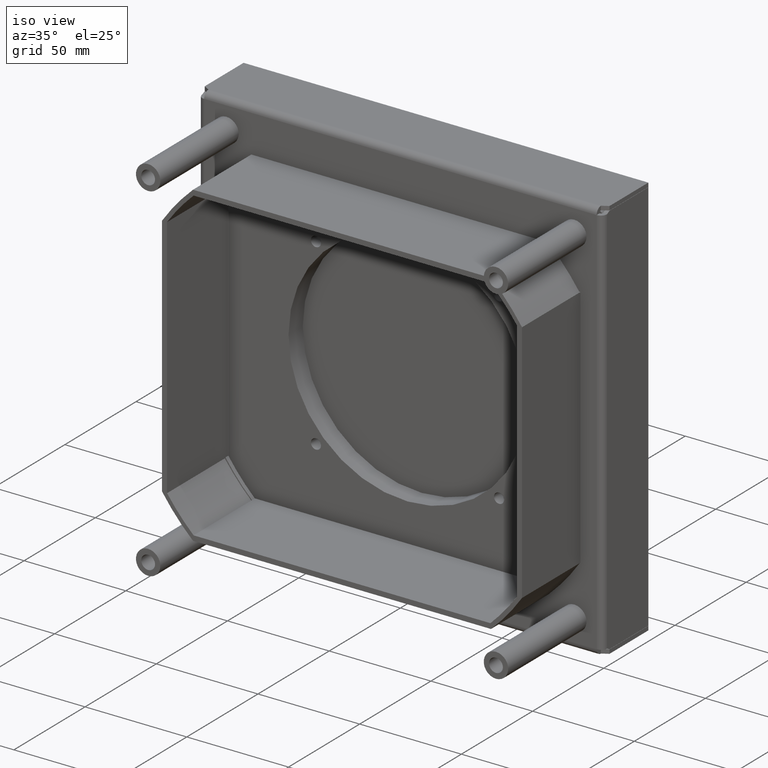
[diagram: clean part render]
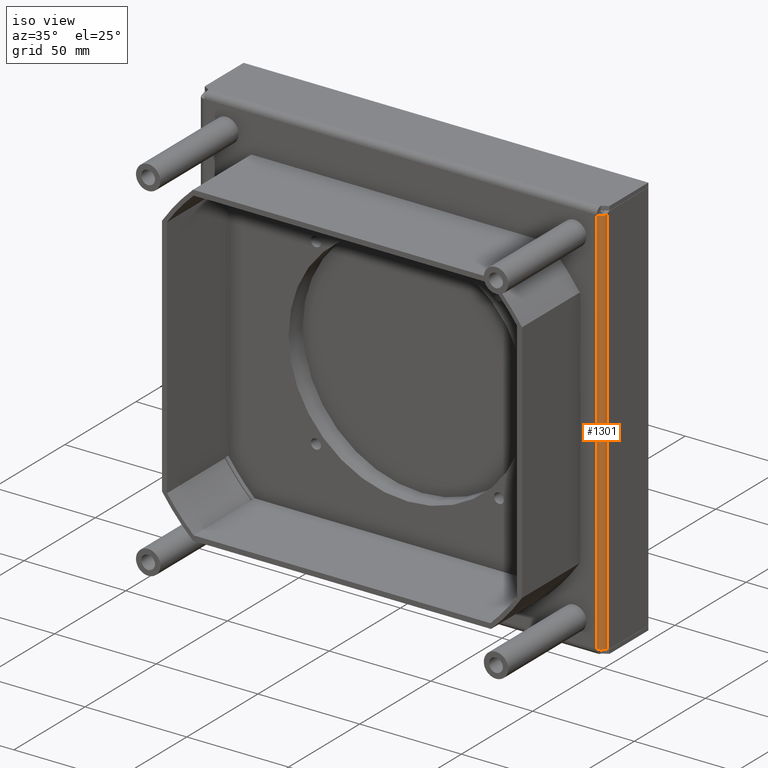
[diagram: same view with one face highlighted and labeled with its STEP entity id]
A machine part, iso view. The second image highlights one B-rep face of the part: STEP entity #1301.
In plain terms, the highlighted cylindrical surface (edge-blend (fillet) strip) has radius 3 mm, axis along (0, 0, -1).
Its self-contained STEP definition (entity closure, byte-faithful):
#249=DIRECTION('',(1.E0,0.E0,0.E0));
#250=VECTOR('',#249,1.93E2);
#251=CARTESIAN_POINT('',(-9.65E1,3.E0,9.95E1));
#252=LINE('',#251,#250);
#256=CARTESIAN_POINT('',(9.65E1,3.E0,9.65E1));
#257=DIRECTION('',(1.E0,0.E0,0.E0));
#258=DIRECTION('',(0.E0,0.E0,1.E0));
#259=AXIS2_PLACEMENT_3D('',#256,#257,#258);
#264=DIRECTION('',(-1.E0,0.E0,0.E0));
#265=VECTOR('',#264,1.93E2);
#266=CARTESIAN_POINT('',(9.65E1,0.E0,9.65E1));
#267=LINE('',#266,#265);
#271=CARTESIAN_POINT('',(-9.65E1,3.E0,9.65E1));
#272=DIRECTION('',(1.E0,0.E0,0.E0));
#273=DIRECTION('',(0.E0,0.E0,1.E0));
#274=AXIS2_PLACEMENT_3D('',#271,#272,#273);
#1181=CARTESIAN_POINT('',(-9.65E1,0.E0,9.65E1));
#1182=VERTEX_POINT('',#1181);
#1185=CARTESIAN_POINT('',(-9.65E1,3.E0,9.95E1));
#1187=VERTEX_POINT('',#1185);
#1237=CARTESIAN_POINT('',(9.65E1,0.E0,9.65E1));
#1238=VERTEX_POINT('',#1237);
#1241=CARTESIAN_POINT('',(9.65E1,3.E0,9.95E1));
#1243=VERTEX_POINT('',#1241);
#1287=CARTESIAN_POINT('',(2.842170943040E-14,3.E0,9.65E1));
#1288=DIRECTION('',(1.E0,0.E0,0.E0));
#1289=DIRECTION('',(0.E0,0.E0,1.E0));
#1290=AXIS2_PLACEMENT_3D('',#1287,#1288,#1289);
#1291=CYLINDRICAL_SURFACE('',#1290,3.E0);
#1293=ORIENTED_EDGE('',*,*,#1292,.T.);
#1295=ORIENTED_EDGE('',*,*,#1294,.T.);
#1296=ORIENTED_EDGE('',*,*,#1258,.T.);
#1298=ORIENTED_EDGE('',*,*,#1297,.F.);
#1299=EDGE_LOOP('',(#1293,#1295,#1296,#1298));
#1300=FACE_OUTER_BOUND('',#1299,.F.);
#260=CIRCLE('',#259,3.E0);
#275=CIRCLE('',#274,3.E0);
#1258=EDGE_CURVE('',#1238,#1182,#267,.T.);
#1292=EDGE_CURVE('',#1187,#1243,#252,.T.);
#1294=EDGE_CURVE('',#1243,#1238,#260,.T.);
#1297=EDGE_CURVE('',#1187,#1182,#275,.T.);
#1301=ADVANCED_FACE('',(#1300),#1291,.T.);